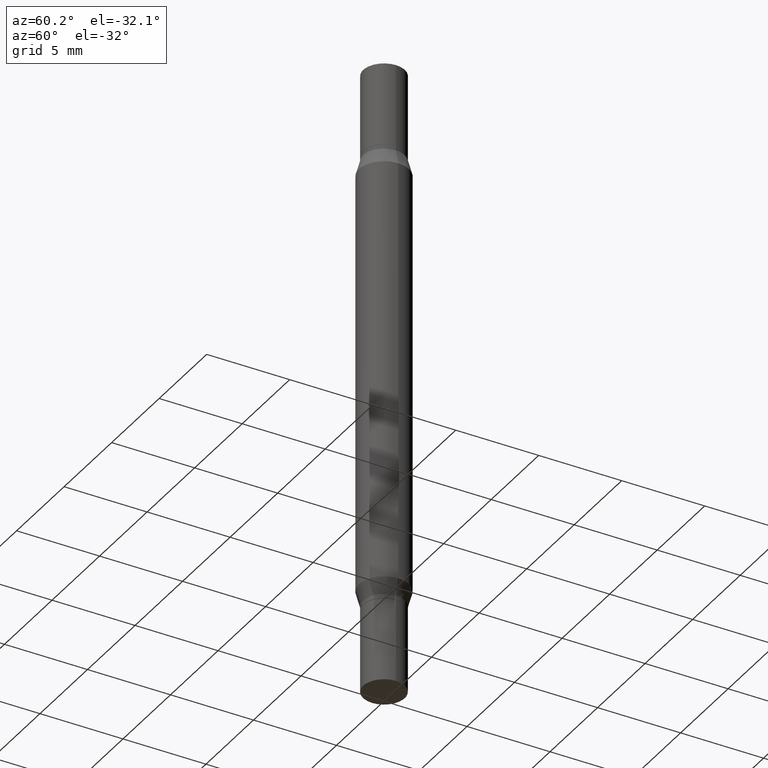
[diagram: clean part render]
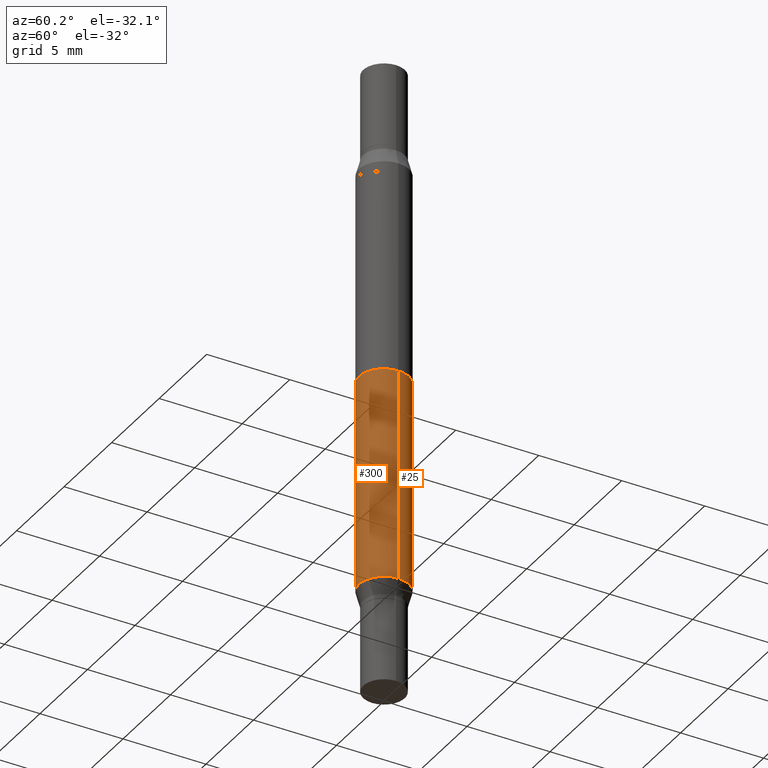
[diagram: same view with one multi-face feature highlighted, each face labeled with its STEP entity id]
A machine part, auxiliary view. The highlighted faces form ONE feature: a constant-radius fillet chain: 2 tangent blend faces with common blend radius 1.4999 mm. The faces share edges in the B-rep.
Their STEP definitions:
[1] entity #25 (Cylinder):
#14 = ORIENTED_EDGE ( 'NONE', *, *, #52, .T. ) ;
#25 = ADVANCED_FACE ( 'NONE', ( #924 ), #41, .T. ) ;
#41 = CYLINDRICAL_SURFACE ( 'NONE', #738, 0.05905000000000000526 ) ;
#52 = EDGE_CURVE ( 'NONE', #258, #839, #110, .T. ) ;
#60 = EDGE_CURVE ( 'NONE', #272, #842, #891, .T. ) ;
#71 = CIRCLE ( 'NONE', #830, 0.05904999999999999832 ) ;
#78 = DIRECTION ( 'NONE',  ( 1.000000000000000000, -6.982962677686265133E-15, 0.000000000000000000 ) ) ;
#92 = DIRECTION ( 'NONE',  ( 2.445468806185136597E-29, 3.491805094961124077E-15, 1.000000000000000000 ) ) ;
#110 = LINE ( 'NONE', #409, #561 ) ;
#197 = ORIENTED_EDGE ( 'NONE', *, *, #60, .F. ) ;
#236 = DIRECTION ( 'NONE',  ( -2.445468806185136597E-29, 3.491481338843145583E-15, 1.000000000000000000 ) ) ;
#258 = VERTEX_POINT ( 'NONE', #946 ) ;
#272 = VERTEX_POINT ( 'NONE', #651 ) ;
#349 = EDGE_LOOP ( 'NONE', ( #197, #751, #14, #936 ) ) ;
#351 = DIRECTION ( 'NONE',  ( -2.445468806185136597E-29, -3.491805094961124077E-15, -1.000000000000000000 ) ) ;
#360 = DIRECTION ( 'NONE',  ( -2.445468806185136877E-29, -3.491805094961123683E-15, -1.000000000000000000 ) ) ;
#378 = DIRECTION ( 'NONE',  ( 1.000000000000000000, -6.982962677686273021E-15, 0.000000000000000000 ) ) ;
#386 = CIRCLE ( 'NONE', #957, 0.05904999999999999832 ) ;
#409 = CARTESIAN_POINT ( 'NONE',  ( 0.05905000000000000526, -5.636191362924657961E-15, -1.496099999999999985 ) ) ;
#456 = CARTESIAN_POINT ( 'NONE',  ( 3.062556691798133272E-29, -8.509226700344482173E-16, -0.2437607004545535860 ) ) ;
#472 = DIRECTION ( 'NONE',  ( 1.000000000000000000, -6.982962677686272233E-15, 0.000000000000000000 ) ) ;
#491 = DIRECTION ( 'NONE',  ( -2.445468806185136877E-29, -3.491805094961123683E-15, -1.000000000000000000 ) ) ;
#548 = CARTESIAN_POINT ( 'NONE',  ( 3.062556691798133272E-29, -4.372519294262821742E-15, -1.252339299545446316 ) ) ;
#561 = VECTOR ( 'NONE', #491, 39.37007874015748143 ) ;
#597 = CARTESIAN_POINT ( 'NONE',  ( -0.05905000000000000526, -4.818735010038875060E-15, -1.496099999999999985 ) ) ;
#629 = EDGE_CURVE ( 'NONE', #258, #272, #71, .T. ) ;
#650 = EDGE_CURVE ( 'NONE', #839, #842, #386, .T. ) ;
#651 = CARTESIAN_POINT ( 'NONE',  ( -0.05904999999999999832, -4.458102632660388560E-16, -0.2437607004545535860 ) ) ;
#671 = VECTOR ( 'NONE', #360, 39.37007874015748143 ) ;
#709 = CARTESIAN_POINT ( 'NONE',  ( -0.05904999999999999832, -2.206690208753205666E-15, -1.252339299545446316 ) ) ;
#738 = AXIS2_PLACEMENT_3D ( 'NONE', #861, #351, #472 ) ;
#751 = ORIENTED_EDGE ( 'NONE', *, *, #629, .F. ) ;
#830 = AXIS2_PLACEMENT_3D ( 'NONE', #456, #92, #78 ) ;
#839 = VERTEX_POINT ( 'NONE', #875 ) ;
#842 = VERTEX_POINT ( 'NONE', #709 ) ;
#861 = CARTESIAN_POINT ( 'NONE',  ( 0.000000000000000000, -5.223847416807283040E-15, -1.496099999999999985 ) ) ;
#875 = CARTESIAN_POINT ( 'NONE',  ( 0.05904999999999999832, -4.784863240380196662E-15, -1.252339299545446316 ) ) ;
#891 = LINE ( 'NONE', #597, #671 ) ;
#924 = FACE_OUTER_BOUND ( 'NONE', #349, .T. ) ;
#936 = ORIENTED_EDGE ( 'NONE', *, *, #650, .T. ) ;
#946 = CARTESIAN_POINT ( 'NONE',  ( 0.05904999999999999832, -1.263266616151821658E-15, -0.2437607004545535860 ) ) ;
#957 = AXIS2_PLACEMENT_3D ( 'NONE', #548, #236, #378 ) ;
[2] entity #300 (Cylinder):
#18 = ORIENTED_EDGE ( 'NONE', *, *, #52, .F. ) ;
#52 = EDGE_CURVE ( 'NONE', #258, #839, #110, .T. ) ;
#60 = EDGE_CURVE ( 'NONE', #272, #842, #891, .T. ) ;
#64 = FACE_OUTER_BOUND ( 'NONE', #871, .T. ) ;
#110 = LINE ( 'NONE', #409, #561 ) ;
#214 = DIRECTION ( 'NONE',  ( 2.445468806185136597E-29, 3.491805094961124077E-15, 1.000000000000000000 ) ) ;
#215 = DIRECTION ( 'NONE',  ( -2.445468806185136597E-29, -3.491805094961124077E-15, -1.000000000000000000 ) ) ;
#258 = VERTEX_POINT ( 'NONE', #946 ) ;
#261 = ORIENTED_EDGE ( 'NONE', *, *, #844, .T. ) ;
#268 = AXIS2_PLACEMENT_3D ( 'NONE', #444, #215, #899 ) ;
#272 = VERTEX_POINT ( 'NONE', #651 ) ;
#300 = ADVANCED_FACE ( 'NONE', ( #64 ), #679, .T. ) ;
#324 = DIRECTION ( 'NONE',  ( -2.445468806185136597E-29, 3.491481338843145583E-15, 1.000000000000000000 ) ) ;
#360 = DIRECTION ( 'NONE',  ( -2.445468806185136877E-29, -3.491805094961123683E-15, -1.000000000000000000 ) ) ;
#409 = CARTESIAN_POINT ( 'NONE',  ( 0.05905000000000000526, -5.636191362924657961E-15, -1.496099999999999985 ) ) ;
#431 = AXIS2_PLACEMENT_3D ( 'NONE', #802, #324, #791 ) ;
#444 = CARTESIAN_POINT ( 'NONE',  ( 0.000000000000000000, -5.223847416807283040E-15, -1.496099999999999985 ) ) ;
#491 = DIRECTION ( 'NONE',  ( -2.445468806185136877E-29, -3.491805094961123683E-15, -1.000000000000000000 ) ) ;
#561 = VECTOR ( 'NONE', #491, 39.37007874015748143 ) ;
#585 = EDGE_CURVE ( 'NONE', #272, #258, #641, .T. ) ;
#595 = CARTESIAN_POINT ( 'NONE',  ( 3.062556691798133272E-29, -8.509226700344482173E-16, -0.2437607004545535860 ) ) ;
#597 = CARTESIAN_POINT ( 'NONE',  ( -0.05905000000000000526, -4.818735010038875060E-15, -1.496099999999999985 ) ) ;
#641 = CIRCLE ( 'NONE', #972, 0.05904999999999999832 ) ;
#651 = CARTESIAN_POINT ( 'NONE',  ( -0.05904999999999999832, -4.458102632660388560E-16, -0.2437607004545535860 ) ) ;
#671 = VECTOR ( 'NONE', #360, 39.37007874015748143 ) ;
#679 = CYLINDRICAL_SURFACE ( 'NONE', #268, 0.05905000000000000526 ) ;
#709 = CARTESIAN_POINT ( 'NONE',  ( -0.05904999999999999832, -2.206690208753205666E-15, -1.252339299545446316 ) ) ;
#739 = CIRCLE ( 'NONE', #431, 0.05904999999999999832 ) ;
#791 = DIRECTION ( 'NONE',  ( 1.000000000000000000, -6.982962677686273021E-15, 0.000000000000000000 ) ) ;
#802 = CARTESIAN_POINT ( 'NONE',  ( 3.062556691798133272E-29, -4.372519294262821742E-15, -1.252339299545446316 ) ) ;
#804 = ORIENTED_EDGE ( 'NONE', *, *, #585, .F. ) ;
#839 = VERTEX_POINT ( 'NONE', #875 ) ;
#842 = VERTEX_POINT ( 'NONE', #709 ) ;
#844 = EDGE_CURVE ( 'NONE', #842, #839, #739, .T. ) ;
#869 = ORIENTED_EDGE ( 'NONE', *, *, #60, .T. ) ;
#871 = EDGE_LOOP ( 'NONE', ( #804, #869, #261, #18 ) ) ;
#875 = CARTESIAN_POINT ( 'NONE',  ( 0.05904999999999999832, -4.784863240380196662E-15, -1.252339299545446316 ) ) ;
#891 = LINE ( 'NONE', #597, #671 ) ;
#899 = DIRECTION ( 'NONE',  ( 1.000000000000000000, -6.982962677686272233E-15, 0.000000000000000000 ) ) ;
#903 = DIRECTION ( 'NONE',  ( 1.000000000000000000, -6.982962677686265133E-15, 0.000000000000000000 ) ) ;
#946 = CARTESIAN_POINT ( 'NONE',  ( 0.05904999999999999832, -1.263266616151821658E-15, -0.2437607004545535860 ) ) ;
#972 = AXIS2_PLACEMENT_3D ( 'NONE', #595, #214, #903 ) ;